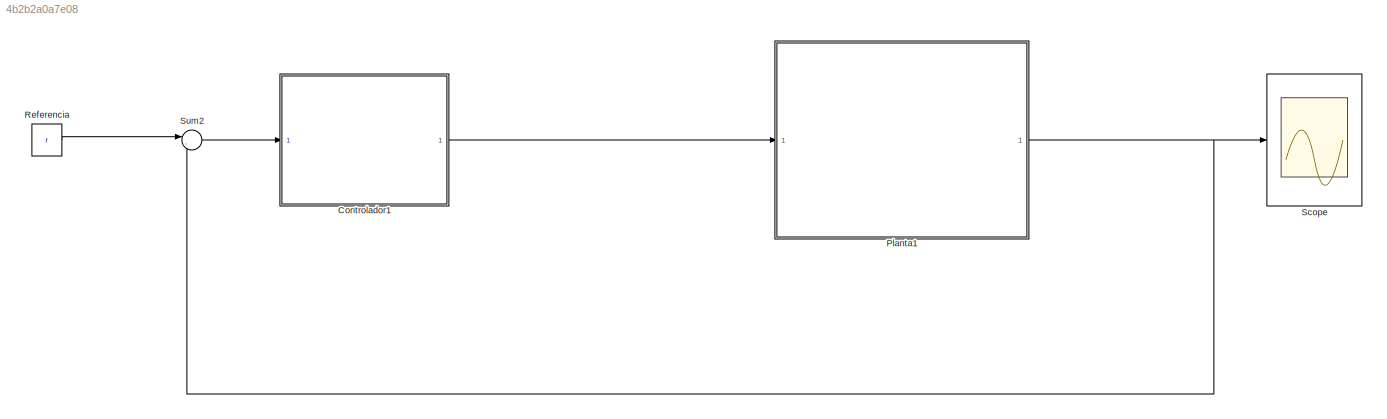
MODEL slx_4b2b2a0a7e08
KIND model
CONFIG AbsTol = auto
CONFIG FixedStep = 0.001
CONFIG MaxStep = auto
CONFIG MinStep = auto
CONFIG RelTol = 1e-3
CONFIG SampleTimeConstraint = Unconstrained
CONFIG Solver = ode4
CONFIG SolverMode = Auto
CONFIG SolverName = ode4
CONFIG StartTime = 0.0
CONFIG StopTime = 10.0
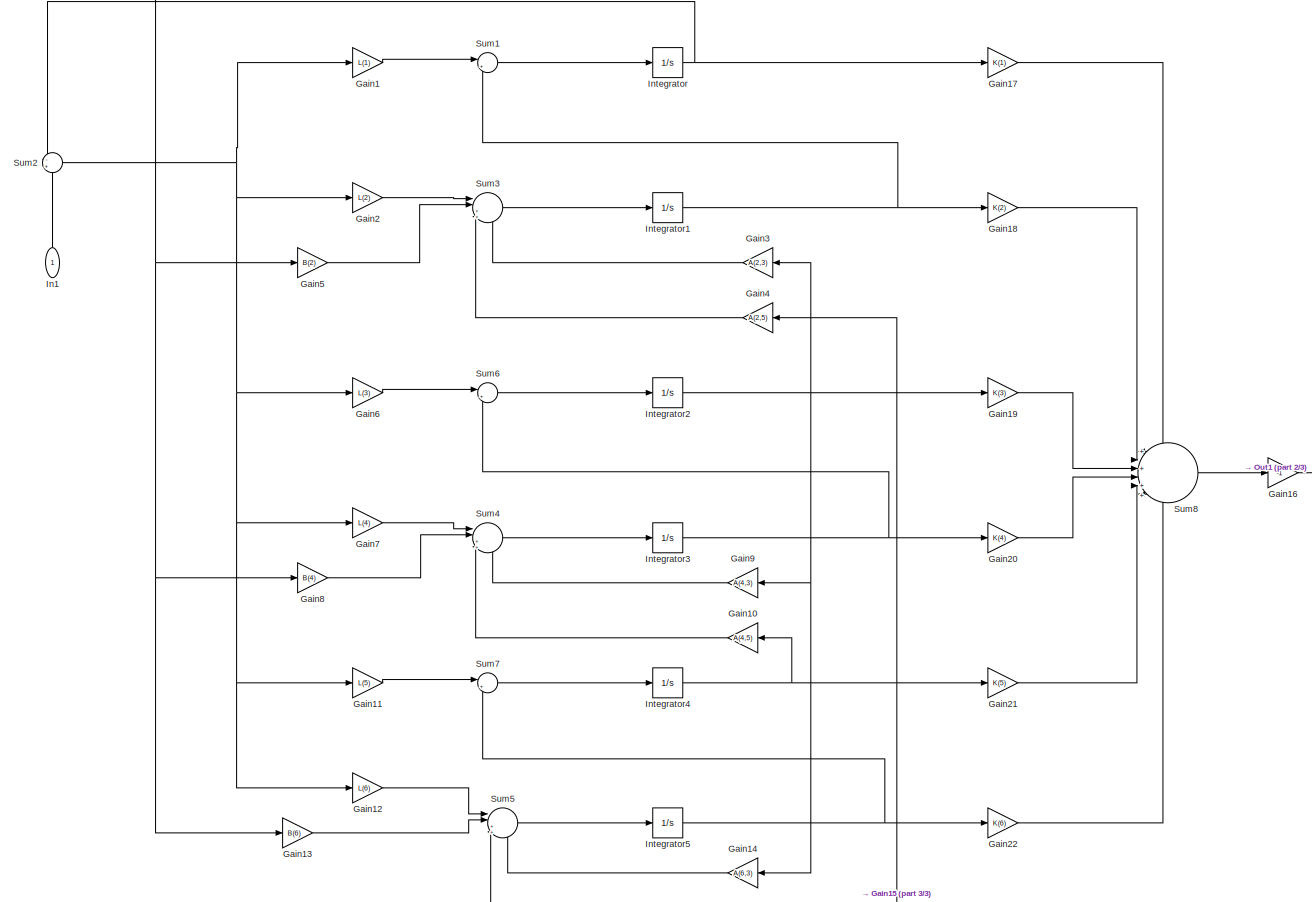
[diagram: Controlador1 - part 1/3, most of the canvas]
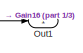
[diagram: Controlador1 - part 2/3, middle right region]
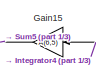
[diagram: Controlador1 - part 3/3, bottom center region]
BLOCK [SubSystem] Controlador1
  Ports = [1, 1]
  RequestExecContextInheritance = off
BLOCK [Gain] Controlador1/Gain1
  Gain = L(1)
  OutDataTypeStr = Inherit: Inherit via internal rule
  ParamDataTypeStr = Inherit: Inherit via internal rule
  SaturateOnIntegerOverflow = off
BLOCK [Gain] Controlador1/Gain10
  Gain = A(4,5)
  OutDataTypeStr = Inherit: Inherit via internal rule
  ParamDataTypeStr = Inherit: Inherit via internal rule
  SaturateOnIntegerOverflow = off
BLOCK [Gain] Controlador1/Gain11
  Gain = L(5)
  OutDataTypeStr = Inherit: Inherit via internal rule
  ParamDataTypeStr = Inherit: Inherit via internal rule
  SaturateOnIntegerOverflow = off
BLOCK [Gain] Controlador1/Gain12
  Gain = L(6)
  OutDataTypeStr = Inherit: Inherit via internal rule
  ParamDataTypeStr = Inherit: Inherit via internal rule
  SaturateOnIntegerOverflow = off
BLOCK [Gain] Controlador1/Gain13
  Gain = B(6)
  OutDataTypeStr = Inherit: Inherit via internal rule
  ParamDataTypeStr = Inherit: Inherit via internal rule
  SaturateOnIntegerOverflow = off
BLOCK [Gain] Controlador1/Gain14
  Gain = A(6,3)
  OutDataTypeStr = Inherit: Inherit via internal rule
  ParamDataTypeStr = Inherit: Inherit via internal rule
  SaturateOnIntegerOverflow = off
BLOCK [Gain] Controlador1/Gain15
  Gain = A(6,5)
  OutDataTypeStr = Inherit: Inherit via internal rule
  ParamDataTypeStr = Inherit: Inherit via internal rule
  SaturateOnIntegerOverflow = off
BLOCK [Gain] Controlador1/Gain16
  Gain = -1
  OutDataTypeStr = Inherit: Inherit via internal rule
  ParamDataTypeStr = Inherit: Inherit via internal rule
  SaturateOnIntegerOverflow = off
BLOCK [Gain] Controlador1/Gain17
  Gain = K(1)
  OutDataTypeStr = Inherit: Inherit via internal rule
  ParamDataTypeStr = Inherit: Inherit via internal rule
  SaturateOnIntegerOverflow = off
BLOCK [Gain] Controlador1/Gain18
  Gain = K(2)
  OutDataTypeStr = Inherit: Inherit via internal rule
  ParamDataTypeStr = Inherit: Inherit via internal rule
  SaturateOnIntegerOverflow = off
BLOCK [Gain] Controlador1/Gain19
  Gain = K(3)
  OutDataTypeStr = Inherit: Inherit via internal rule
  ParamDataTypeStr = Inherit: Inherit via internal rule
  SaturateOnIntegerOverflow = off
BLOCK [Gain] Controlador1/Gain2
  Gain = L(2)
  OutDataTypeStr = Inherit: Inherit via internal rule
  ParamDataTypeStr = Inherit: Inherit via internal rule
  SaturateOnIntegerOverflow = off
BLOCK [Gain] Controlador1/Gain20
  Gain = K(4)
  OutDataTypeStr = Inherit: Inherit via internal rule
  ParamDataTypeStr = Inherit: Inherit via internal rule
  SaturateOnIntegerOverflow = off
BLOCK [Gain] Controlador1/Gain21
  Gain = K(5)
  OutDataTypeStr = Inherit: Inherit via internal rule
  ParamDataTypeStr = Inherit: Inherit via internal rule
  SaturateOnIntegerOverflow = off
BLOCK [Gain] Controlador1/Gain22
  Gain = K(6)
  OutDataTypeStr = Inherit: Inherit via internal rule
  ParamDataTypeStr = Inherit: Inherit via internal rule
  SaturateOnIntegerOverflow = off
BLOCK [Gain] Controlador1/Gain3
  Gain = A(2,3)
  OutDataTypeStr = Inherit: Inherit via internal rule
  ParamDataTypeStr = Inherit: Inherit via internal rule
  SaturateOnIntegerOverflow = off
BLOCK [Gain] Controlador1/Gain4
  Gain = A(2,5)
  OutDataTypeStr = Inherit: Inherit via internal rule
  ParamDataTypeStr = Inherit: Inherit via internal rule
  SaturateOnIntegerOverflow = off
BLOCK [Gain] Controlador1/Gain5
  Gain = B(2)
  OutDataTypeStr = Inherit: Inherit via internal rule
  ParamDataTypeStr = Inherit: Inherit via internal rule
  SaturateOnIntegerOverflow = off
BLOCK [Gain] Controlador1/Gain6
  Gain = L(3)
  OutDataTypeStr = Inherit: Inherit via internal rule
  ParamDataTypeStr = Inherit: Inherit via internal rule
  SaturateOnIntegerOverflow = off
BLOCK [Gain] Controlador1/Gain7
  Gain = L(4)
  OutDataTypeStr = Inherit: Inherit via internal rule
  ParamDataTypeStr = Inherit: Inherit via internal rule
  SaturateOnIntegerOverflow = off
BLOCK [Gain] Controlador1/Gain8
  Gain = B(4)
  OutDataTypeStr = Inherit: Inherit via internal rule
  ParamDataTypeStr = Inherit: Inherit via internal rule
  SaturateOnIntegerOverflow = off
BLOCK [Gain] Controlador1/Gain9
  Gain = A(4,3)
  OutDataTypeStr = Inherit: Inherit via internal rule
  ParamDataTypeStr = Inherit: Inherit via internal rule
  SaturateOnIntegerOverflow = off
BLOCK [Inport] Controlador1/In1
  IconDisplay = Port number
BLOCK [Integrator] Controlador1/Integrator
  Ports = [1, 1]
BLOCK [Integrator] Controlador1/Integrator1
  Ports = [1, 1]
BLOCK [Integrator] Controlador1/Integrator2
  Ports = [1, 1]
BLOCK [Integrator] Controlador1/Integrator3
  Ports = [1, 1]
BLOCK [Integrator] Controlador1/Integrator4
  Ports = [1, 1]
BLOCK [Integrator] Controlador1/Integrator5
  Ports = [1, 1]
BLOCK [Outport] Controlador1/Out1
  IconDisplay = Port number
BLOCK [Sum] Controlador1/Sum1
  IconShape = round
  InputSameDT = off
  Inputs = |++
  OutDataTypeStr = Inherit: Inherit via internal rule
  Ports = [2, 1]
  SaturateOnIntegerOverflow = off
BLOCK [Sum] Controlador1/Sum2
  IconShape = round
  InputSameDT = off
  Inputs = -+
  OutDataTypeStr = Inherit: Inherit via internal rule
  Ports = [2, 1]
  SaturateOnIntegerOverflow = off
BLOCK [Sum] Controlador1/Sum3
  IconShape = round
  InputSameDT = off
  Inputs = ||++++
  OutDataTypeStr = Inherit: Inherit via internal rule
  Ports = [4, 1]
  SaturateOnIntegerOverflow = off
BLOCK [Sum] Controlador1/Sum4
  IconShape = round
  InputSameDT = off
  Inputs = ||++++
  OutDataTypeStr = Inherit: Inherit via internal rule
  Ports = [4, 1]
  SaturateOnIntegerOverflow = off
BLOCK [Sum] Controlador1/Sum5
  IconShape = round
  InputSameDT = off
  Inputs = ||++++
  OutDataTypeStr = Inherit: Inherit via internal rule
  Ports = [4, 1]
  SaturateOnIntegerOverflow = off
BLOCK [Sum] Controlador1/Sum6
  IconShape = round
  InputSameDT = off
  Inputs = |++
  OutDataTypeStr = Inherit: Inherit via internal rule
  Ports = [2, 1]
  SaturateOnIntegerOverflow = off
BLOCK [Sum] Controlador1/Sum7
  IconShape = round
  InputSameDT = off
  Inputs = |++
  OutDataTypeStr = Inherit: Inherit via internal rule
  Ports = [2, 1]
  SaturateOnIntegerOverflow = off
BLOCK [Sum] Controlador1/Sum8
  IconShape = round
  InputSameDT = off
  Inputs = +|+|+|+|+|+
  OutDataTypeStr = Inherit: Inherit via internal rule
  Ports = [6, 1]
  SaturateOnIntegerOverflow = off
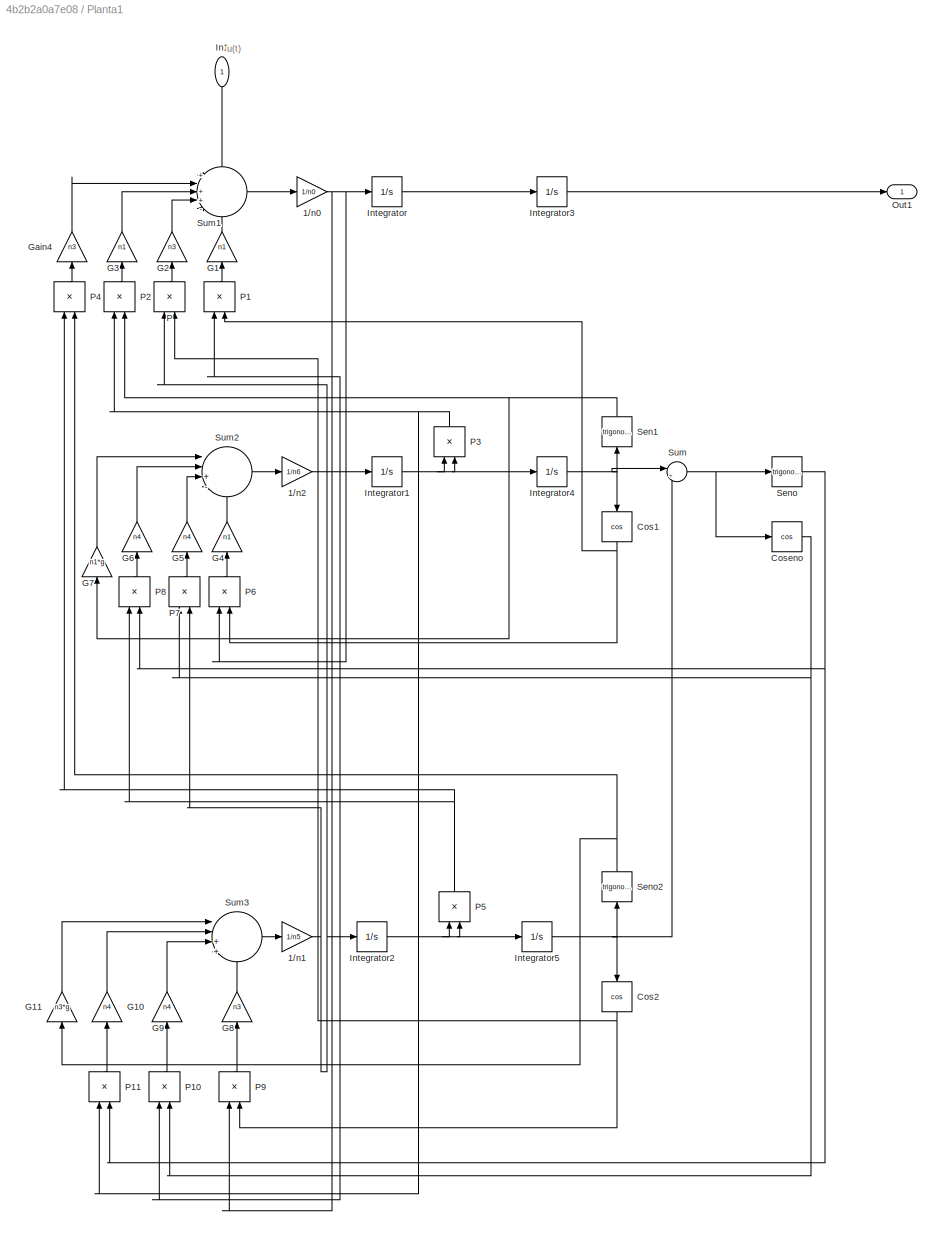
BLOCK [SubSystem] Planta1
  Ports = [1, 1]
  RequestExecContextInheritance = off
BLOCK [Gain] Planta1/1//n0
  Gain = 1/n0
  OutDataTypeStr = Inherit: Inherit via internal rule
  ParamDataTypeStr = Inherit: Inherit via internal rule
  SaturateOnIntegerOverflow = off
BLOCK [Gain] Planta1/1//n1
  Gain = 1/n5
  OutDataTypeStr = Inherit: Inherit via internal rule
  ParamDataTypeStr = Inherit: Inherit via internal rule
  SaturateOnIntegerOverflow = off
BLOCK [Gain] Planta1/1//n2
  Gain = 1/n6
  OutDataTypeStr = Inherit: Inherit via internal rule
  ParamDataTypeStr = Inherit: Inherit via internal rule
  SaturateOnIntegerOverflow = off
BLOCK [Trigonometry] Planta1/Cos1
  Operator = cos
  Ports = [1, 1]
BLOCK [Trigonometry] Planta1/Cos2
  Operator = cos
  Ports = [1, 1]
BLOCK [Trigonometry] Planta1/Coseno
  Operator = cos
  Ports = [1, 1]
BLOCK [Gain] Planta1/G1
  Gain = n1
  OutDataTypeStr = Inherit: Inherit via internal rule
  ParamDataTypeStr = Inherit: Inherit via internal rule
  SaturateOnIntegerOverflow = off
BLOCK [Gain] Planta1/G10
  Gain = n4
  OutDataTypeStr = Inherit: Inherit via internal rule
  ParamDataTypeStr = Inherit: Inherit via internal rule
  SaturateOnIntegerOverflow = off
BLOCK [Gain] Planta1/G11
  Gain = n3*g
  OutDataTypeStr = Inherit: Inherit via internal rule
  ParamDataTypeStr = Inherit: Inherit via internal rule
  SaturateOnIntegerOverflow = off
BLOCK [Gain] Planta1/G2
  Gain = n3
  OutDataTypeStr = Inherit: Inherit via internal rule
  ParamDataTypeStr = Inherit: Inherit via internal rule
  SaturateOnIntegerOverflow = off
BLOCK [Gain] Planta1/G3
  Gain = n1
  OutDataTypeStr = Inherit: Inherit via internal rule
  ParamDataTypeStr = Inherit: Inherit via internal rule
  SaturateOnIntegerOverflow = off
BLOCK [Gain] Planta1/G4
  Gain = n1
  OutDataTypeStr = Inherit: Inherit via internal rule
  ParamDataTypeStr = Inherit: Inherit via internal rule
  SaturateOnIntegerOverflow = off
BLOCK [Gain] Planta1/G5
  Gain = n4
  OutDataTypeStr = Inherit: Inherit via internal rule
  ParamDataTypeStr = Inherit: Inherit via internal rule
  SaturateOnIntegerOverflow = off
BLOCK [Gain] Planta1/G6
  Gain = n4
  OutDataTypeStr = Inherit: Inherit via internal rule
  ParamDataTypeStr = Inherit: Inherit via internal rule
  SaturateOnIntegerOverflow = off
BLOCK [Gain] Planta1/G7
  Gain = n1*g
  OutDataTypeStr = Inherit: Inherit via internal rule
  ParamDataTypeStr = Inherit: Inherit via internal rule
  SaturateOnIntegerOverflow = off
BLOCK [Gain] Planta1/G8
  Gain = n3
  OutDataTypeStr = Inherit: Inherit via internal rule
  ParamDataTypeStr = Inherit: Inherit via internal rule
  SaturateOnIntegerOverflow = off
BLOCK [Gain] Planta1/G9
  Gain = n4
  OutDataTypeStr = Inherit: Inherit via internal rule
  ParamDataTypeStr = Inherit: Inherit via internal rule
  SaturateOnIntegerOverflow = off
BLOCK [Gain] Planta1/Gain4
  Gain = n3
  OutDataTypeStr = Inherit: Inherit via internal rule
  ParamDataTypeStr = Inherit: Inherit via internal rule
  SaturateOnIntegerOverflow = off
BLOCK [Inport] Planta1/In1
  IconDisplay = Port number
BLOCK [Integrator] Planta1/Integrator
  Ports = [1, 1]
BLOCK [Integrator] Planta1/Integrator1
  Ports = [1, 1]
BLOCK [Integrator] Planta1/Integrator2
  Ports = [1, 1]
BLOCK [Integrator] Planta1/Integrator3
  Ports = [1, 1]
BLOCK [Integrator] Planta1/Integrator4
  Ports = [1, 1]
BLOCK [Integrator] Planta1/Integrator5
  Ports = [1, 1]
BLOCK [Outport] Planta1/Out1
  IconDisplay = Port number
BLOCK [Product] Planta1/P
  InputSameDT = off
  OutDataTypeStr = Inherit: Inherit via internal rule
  Ports = [2, 1]
  RndMeth = Floor
  SaturateOnIntegerOverflow = off
BLOCK [Product] Planta1/P1
  InputSameDT = off
  OutDataTypeStr = Inherit: Inherit via internal rule
  Ports = [2, 1]
  RndMeth = Floor
  SaturateOnIntegerOverflow = off
BLOCK [Product] Planta1/P10
  InputSameDT = off
  OutDataTypeStr = Inherit: Inherit via internal rule
  Ports = [2, 1]
  RndMeth = Floor
  SaturateOnIntegerOverflow = off
BLOCK [Product] Planta1/P11
  InputSameDT = off
  OutDataTypeStr = Inherit: Inherit via internal rule
  Ports = [2, 1]
  RndMeth = Floor
  SaturateOnIntegerOverflow = off
BLOCK [Product] Planta1/P2
  InputSameDT = off
  OutDataTypeStr = Inherit: Inherit via internal rule
  Ports = [2, 1]
  RndMeth = Floor
  SaturateOnIntegerOverflow = off
BLOCK [Product] Planta1/P3
  InputSameDT = off
  OutDataTypeStr = Inherit: Inherit via internal rule
  Ports = [2, 1]
  RndMeth = Floor
  SaturateOnIntegerOverflow = off
BLOCK [Product] Planta1/P4
  InputSameDT = off
  OutDataTypeStr = Inherit: Inherit via internal rule
  Ports = [2, 1]
  RndMeth = Floor
  SaturateOnIntegerOverflow = off
BLOCK [Product] Planta1/P5
  InputSameDT = off
  OutDataTypeStr = Inherit: Inherit via internal rule
  Ports = [2, 1]
  RndMeth = Floor
  SaturateOnIntegerOverflow = off
BLOCK [Product] Planta1/P6
  InputSameDT = off
  OutDataTypeStr = Inherit: Inherit via internal rule
  Ports = [2, 1]
  RndMeth = Floor
  SaturateOnIntegerOverflow = off
BLOCK [Product] Planta1/P7
  InputSameDT = off
  OutDataTypeStr = Inherit: Inherit via internal rule
  Ports = [2, 1]
  RndMeth = Floor
  SaturateOnIntegerOverflow = off
BLOCK [Product] Planta1/P8
  InputSameDT = off
  OutDataTypeStr = Inherit: Inherit via internal rule
  Ports = [2, 1]
  RndMeth = Floor
  SaturateOnIntegerOverflow = off
BLOCK [Product] Planta1/P9
  InputSameDT = off
  OutDataTypeStr = Inherit: Inherit via internal rule
  Ports = [2, 1]
  RndMeth = Floor
  SaturateOnIntegerOverflow = off
BLOCK [Trigonometry] Planta1/Sen1
  Ports = [1, 1]
BLOCK [Trigonometry] Planta1/Seno
  Ports = [1, 1]
BLOCK [Trigonometry] Planta1/Seno2
  Ports = [1, 1]
BLOCK [Sum] Planta1/Sum
  IconShape = round
  InputSameDT = off
  Inputs = |+-
  OutDataTypeStr = Inherit: Inherit via internal rule
  Ports = [2, 1]
  SaturateOnIntegerOverflow = off
BLOCK [Sum] Planta1/Sum1
  IconShape = round
  InputSameDT = off
  Inputs = +|++-|-
  OutDataTypeStr = Inherit: Inherit via internal rule
  Ports = [5, 1]
  SaturateOnIntegerOverflow = off
BLOCK [Sum] Planta1/Sum2
  IconShape = round
  InputSameDT = off
  Inputs = ||+--|-
  OutDataTypeStr = Inherit: Inherit via internal rule
  Ports = [4, 1]
  SaturateOnIntegerOverflow = off
BLOCK [Sum] Planta1/Sum3
  IconShape = round
  InputSameDT = off
  Inputs = ||++-|-
  OutDataTypeStr = Inherit: Inherit via internal rule
  Ports = [4, 1]
  SaturateOnIntegerOverflow = off
BLOCK [Constant] Referencia
  Value = r
BLOCK [Scope] Scope
  Floating = off
  NumInputPorts = 1
  Ports = [1]
  TimeRange = 10
  YMax = 1.5
  YMin = -1
BLOCK [Sum] Sum2
  IconShape = round
  InputSameDT = off
  Inputs = |-+
  OutDataTypeStr = Inherit: Inherit via internal rule
  Ports = [2, 1]
  SaturateOnIntegerOverflow = off
ANNOTATION Planta1: u(t)
LINE Controlador1/Gain10:1 -> Controlador1/Sum4:3
LINE Controlador1/Gain11:1 -> Controlador1/Sum7:1
LINE Controlador1/Gain12:1 -> Controlador1/Sum5:1
LINE Controlador1/Gain13:1 -> Controlador1/Sum5:2
LINE Controlador1/Gain14:1 -> Controlador1/Sum5:4
LINE Controlador1/Gain15:1 -> Controlador1/Sum5:3
NET Controlador1/Gain16:1 -> Controlador1/Gain13:1, Controlador1/Gain5:1, Controlador1/Gain8:1, Controlador1/Out1:1
LINE Controlador1/Gain17:1 -> Controlador1/Sum8:1
LINE Controlador1/Gain18:1 -> Controlador1/Sum8:2
LINE Controlador1/Gain19:1 -> Controlador1/Sum8:3
LINE Controlador1/Gain1:1 -> Controlador1/Sum1:1
LINE Controlador1/Gain20:1 -> Controlador1/Sum8:4
LINE Controlador1/Gain21:1 -> Controlador1/Sum8:5
LINE Controlador1/Gain22:1 -> Controlador1/Sum8:6
LINE Controlador1/Gain2:1 -> Controlador1/Sum3:1
LINE Controlador1/Gain3:1 -> Controlador1/Sum3:4
LINE Controlador1/Gain4:1 -> Controlador1/Sum3:3
LINE Controlador1/Gain5:1 -> Controlador1/Sum3:2
LINE Controlador1/Gain6:1 -> Controlador1/Sum6:1
LINE Controlador1/Gain7:1 -> Controlador1/Sum4:1
LINE Controlador1/Gain8:1 -> Controlador1/Sum4:2
LINE Controlador1/Gain9:1 -> Controlador1/Sum4:4
LINE Controlador1/In1:1 -> Controlador1/Sum2:2
NET Controlador1/Integrator1:1 -> Controlador1/Gain18:1, Controlador1/Sum1:2
NET Controlador1/Integrator2:1 -> Controlador1/Gain14:1, Controlador1/Gain19:1, Controlador1/Gain3:1, Controlador1/Gain9:1
NET Controlador1/Integrator3:1 -> Controlador1/Gain20:1, Controlador1/Sum6:2
NET Controlador1/Integrator4:1 -> Controlador1/Gain10:1, Controlador1/Gain15:1, Controlador1/Gain21:1, Controlador1/Gain4:1
NET Controlador1/Integrator5:1 -> Controlador1/Gain22:1, Controlador1/Sum7:2
NET Controlador1/Integrator:1 -> Controlador1/Gain17:1, Controlador1/Sum2:1
LINE Controlador1/Sum1:1 -> Controlador1/Integrator:1
NET Controlador1/Sum2:1 -> Controlador1/Gain11:1, Controlador1/Gain12:1, Controlador1/Gain1:1, Controlador1/Gain2:1, Controlador1/Gain6:1, Controlador1/Gain7:1
LINE Controlador1/Sum3:1 -> Controlador1/Integrator1:1
LINE Controlador1/Sum4:1 -> Controlador1/Integrator3:1
LINE Controlador1/Sum5:1 -> Controlador1/Integrator5:1
LINE Controlador1/Sum6:1 -> Controlador1/Integrator2:1
LINE Controlador1/Sum7:1 -> Controlador1/Integrator4:1
LINE Controlador1/Sum8:1 -> Controlador1/Gain16:1
LINE Controlador1:1 -> Planta1:1
NET Planta1/1//n0:1 -> Planta1/Integrator:1, Planta1/P6:1, Planta1/P9:1
NET Planta1/1//n1:1 -> Planta1/Integrator2:1, Planta1/P7:2, Planta1/P:1
NET Planta1/1//n2:1 -> Planta1/Integrator1:1, Planta1/P10:1, Planta1/P1:1
NET Planta1/Cos1:1 -> Planta1/P1:2, Planta1/P6:2
NET Planta1/Cos2:1 -> Planta1/P9:2, Planta1/P:2
NET Planta1/Coseno:1 -> Planta1/P10:2, Planta1/P7:1
LINE Planta1/G10:1 -> Planta1/Sum3:2
LINE Planta1/G11:1 -> Planta1/Sum3:1
LINE Planta1/G1:1 -> Planta1/Sum1:5
LINE Planta1/G2:1 -> Planta1/Sum1:4
LINE Planta1/G3:1 -> Planta1/Sum1:3
LINE Planta1/G4:1 -> Planta1/Sum2:4
LINE Planta1/G5:1 -> Planta1/Sum2:3
LINE Planta1/G6:1 -> Planta1/Sum2:2
LINE Planta1/G7:1 -> Planta1/Sum2:1
LINE Planta1/G8:1 -> Planta1/Sum3:4
LINE Planta1/G9:1 -> Planta1/Sum3:3
LINE Planta1/Gain4:1 -> Planta1/Sum1:2
LINE Planta1/In1:1 -> Planta1/Sum1:1
NET Planta1/Integrator1:1 -> Planta1/Integrator4:1, Planta1/P3:1, Planta1/P3:2
NET Planta1/Integrator2:1 -> Planta1/Integrator5:1, Planta1/P5:1, Planta1/P5:2
LINE Planta1/Integrator3:1 -> Planta1/Out1:1
NET Planta1/Integrator4:1 -> Planta1/Cos1:1, Planta1/Sen1:1, Planta1/Sum:1
NET Planta1/Integrator5:1 -> Planta1/Cos2:1, Planta1/Seno2:1, Planta1/Sum:2
LINE Planta1/Integrator:1 -> Planta1/Integrator3:1
LINE Planta1/P10:1 -> Planta1/G9:1
LINE Planta1/P11:1 -> Planta1/G10:1
LINE Planta1/P1:1 -> Planta1/G1:1
LINE Planta1/P2:1 -> Planta1/G3:1
NET Planta1/P3:1 -> Planta1/P11:1, Planta1/P2:1
LINE Planta1/P4:1 -> Planta1/Gain4:1
NET Planta1/P5:1 -> Planta1/P4:1, Planta1/P8:1
LINE Planta1/P6:1 -> Planta1/G4:1
LINE Planta1/P7:1 -> Planta1/G5:1
LINE Planta1/P8:1 -> Planta1/G6:1
LINE Planta1/P9:1 -> Planta1/G8:1
LINE Planta1/P:1 -> Planta1/G2:1
NET Planta1/Sen1:1 -> Planta1/G7:1, Planta1/P2:2
NET Planta1/Seno2:1 -> Planta1/G11:1, Planta1/P4:2
NET Planta1/Seno:1 -> Planta1/P11:2, Planta1/P8:2
LINE Planta1/Sum1:1 -> Planta1/1//n0:1
LINE Planta1/Sum2:1 -> Planta1/1//n2:1
LINE Planta1/Sum3:1 -> Planta1/1//n1:1
NET Planta1/Sum:1 -> Planta1/Coseno:1, Planta1/Seno:1
NET Planta1:1 -> Scope:1, Sum2:2
LINE Referencia:1 -> Sum2:1
LINE Sum2:1 -> Controlador1:1
note: NET lines group one-source signal fan-out (src -> all destinations, sorted); 1:1 wires keep LINE
